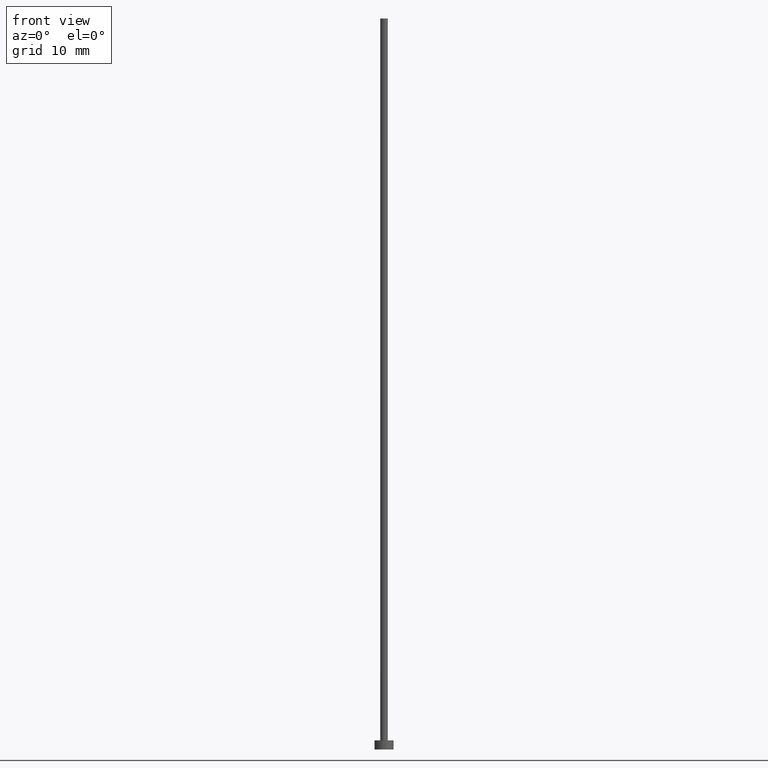
[diagram: clean part render]
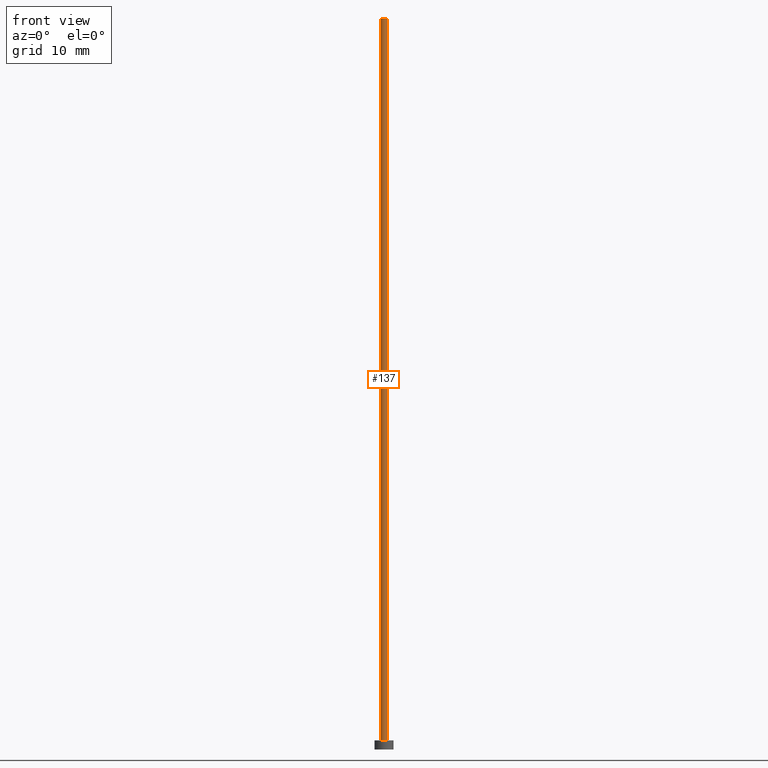
[diagram: same view with one face highlighted and labeled with its STEP entity id]
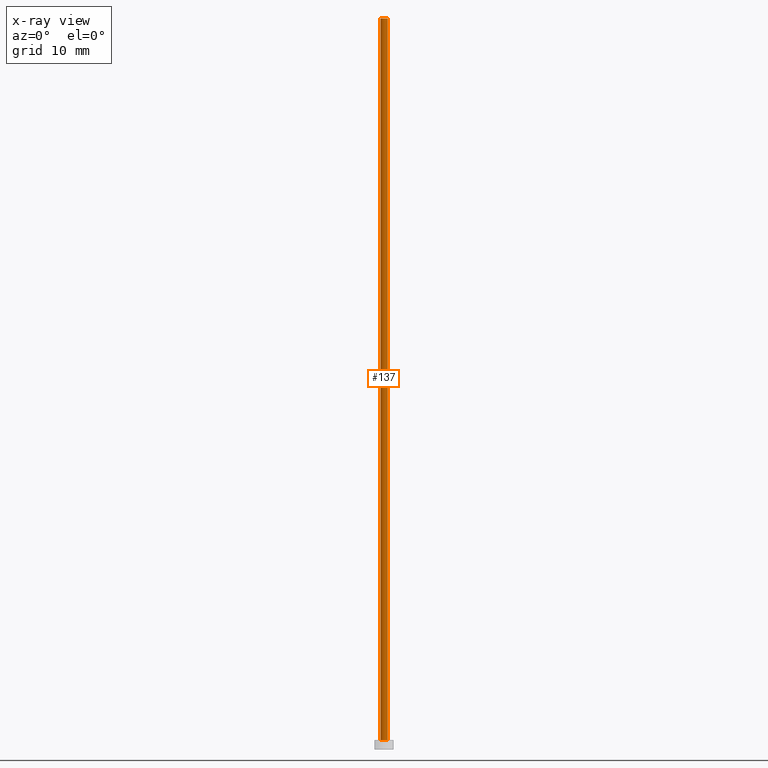
[diagram: x-ray of the same camera — body ghosted, the highlighted face saturated]
A machine part, front view. The second image highlights one B-rep face of the part: STEP entity #137.
The next image is the same camera in x-ray: the body ghosted, the highlighted face saturated — about 0% of this face is hidden behind the body in this view.
In plain terms, the highlighted cylindrical surface (edge-blend (fillet) strip) has radius 0.5 mm, axis along (-0, -0, -1).
Its self-contained STEP definition (entity closure, byte-faithful):
#4 = VERTEX_POINT ( 'NONE', #64 ) ;
#6 = ORIENTED_EDGE ( 'NONE', *, *, #130, .T. ) ;
#18 = CARTESIAN_POINT ( 'NONE',  ( -0.5000000000000000000, 0.000000000000000000, 96.00000000000000000 ) ) ;
#20 = AXIS2_PLACEMENT_3D ( 'NONE', #136, #254, #56 ) ;
#40 = DIRECTION ( 'NONE',  ( -1.000000000000000000, 0.000000000000000000, 0.000000000000000000 ) ) ;
#43 = FACE_OUTER_BOUND ( 'NONE', #101, .T. ) ;
#48 = EDGE_CURVE ( 'NONE', #122, #4, #152, .T. ) ;
#51 = EDGE_CURVE ( 'NONE', #205, #165, #132, .T. ) ;
#56 = DIRECTION ( 'NONE',  ( 1.000000000000000000, 0.000000000000000000, 0.000000000000000000 ) ) ;
#64 = CARTESIAN_POINT ( 'NONE',  ( 0.5000000000000000000, 6.123233995736766036E-17, 1.199999999999999956 ) ) ;
#66 = DIRECTION ( 'NONE',  ( -0.000000000000000000, -0.000000000000000000, -1.000000000000000000 ) ) ;
#79 = CARTESIAN_POINT ( 'NONE',  ( 0.000000000000000000, 0.000000000000000000, 96.00000000000000000 ) ) ;
#82 = ORIENTED_EDGE ( 'NONE', *, *, #48, .T. ) ;
#94 = CARTESIAN_POINT ( 'NONE',  ( 0.5000000000000000000, 6.123233995736766036E-17, 96.00000000000000000 ) ) ;
#96 = CYLINDRICAL_SURFACE ( 'NONE', #103, 0.5000000000000000000 ) ;
#99 = AXIS2_PLACEMENT_3D ( 'NONE', #226, #131, #188 ) ;
#101 = EDGE_LOOP ( 'NONE', ( #222, #119, #6, #82 ) ) ;
#103 = AXIS2_PLACEMENT_3D ( 'NONE', #79, #194, #40 ) ;
#112 = CARTESIAN_POINT ( 'NONE',  ( -0.5000000000000000000, 0.000000000000000000, 1.199999999999999956 ) ) ;
#115 = LINE ( 'NONE', #18, #141 ) ;
#119 = ORIENTED_EDGE ( 'NONE', *, *, #51, .F. ) ;
#122 = VERTEX_POINT ( 'NONE', #112 ) ;
#130 = EDGE_CURVE ( 'NONE', #205, #122, #115, .T. ) ;
#131 = DIRECTION ( 'NONE',  ( 0.000000000000000000, 0.000000000000000000, 1.000000000000000000 ) ) ;
#132 = CIRCLE ( 'NONE', #20, 0.5000000000000000000 ) ;
#136 = CARTESIAN_POINT ( 'NONE',  ( 0.000000000000000000, 0.000000000000000000, 96.00000000000000000 ) ) ;
#137 = ADVANCED_FACE ( 'NONE', ( #43 ), #96, .T. ) ;
#139 = DIRECTION ( 'NONE',  ( -0.000000000000000000, -0.000000000000000000, -1.000000000000000000 ) ) ;
#141 = VECTOR ( 'NONE', #139, 1000.000000000000000 ) ;
#145 = EDGE_CURVE ( 'NONE', #165, #4, #156, .T. ) ;
#152 = CIRCLE ( 'NONE', #99, 0.5000000000000000000 ) ;
#156 = LINE ( 'NONE', #199, #223 ) ;
#160 = CARTESIAN_POINT ( 'NONE',  ( -0.5000000000000000000, 0.000000000000000000, 96.00000000000000000 ) ) ;
#165 = VERTEX_POINT ( 'NONE', #94 ) ;
#188 = DIRECTION ( 'NONE',  ( 1.000000000000000000, 0.000000000000000000, 0.000000000000000000 ) ) ;
#194 = DIRECTION ( 'NONE',  ( -0.000000000000000000, -0.000000000000000000, -1.000000000000000000 ) ) ;
#199 = CARTESIAN_POINT ( 'NONE',  ( 0.5000000000000000000, 6.123233995736766036E-17, 96.00000000000000000 ) ) ;
#205 = VERTEX_POINT ( 'NONE', #160 ) ;
#222 = ORIENTED_EDGE ( 'NONE', *, *, #145, .F. ) ;
#223 = VECTOR ( 'NONE', #66, 1000.000000000000000 ) ;
#226 = CARTESIAN_POINT ( 'NONE',  ( 0.000000000000000000, 0.000000000000000000, 1.199999999999999956 ) ) ;
#254 = DIRECTION ( 'NONE',  ( 0.000000000000000000, 0.000000000000000000, 1.000000000000000000 ) ) ;